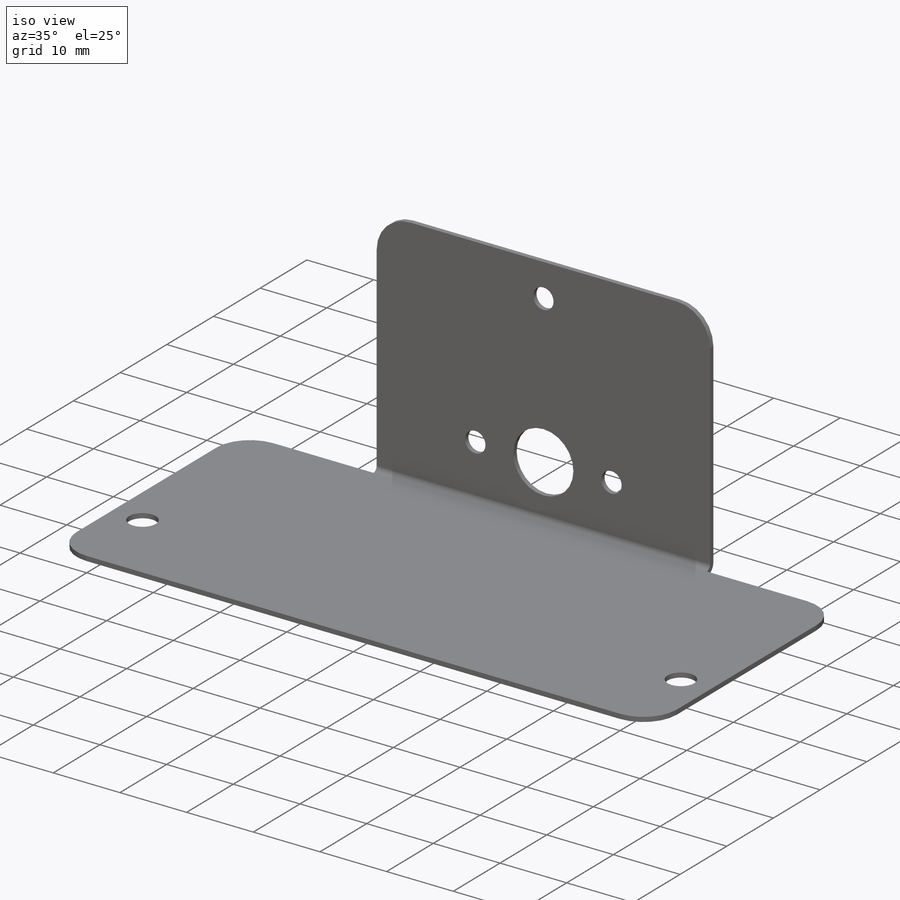
[diagram: iso view]
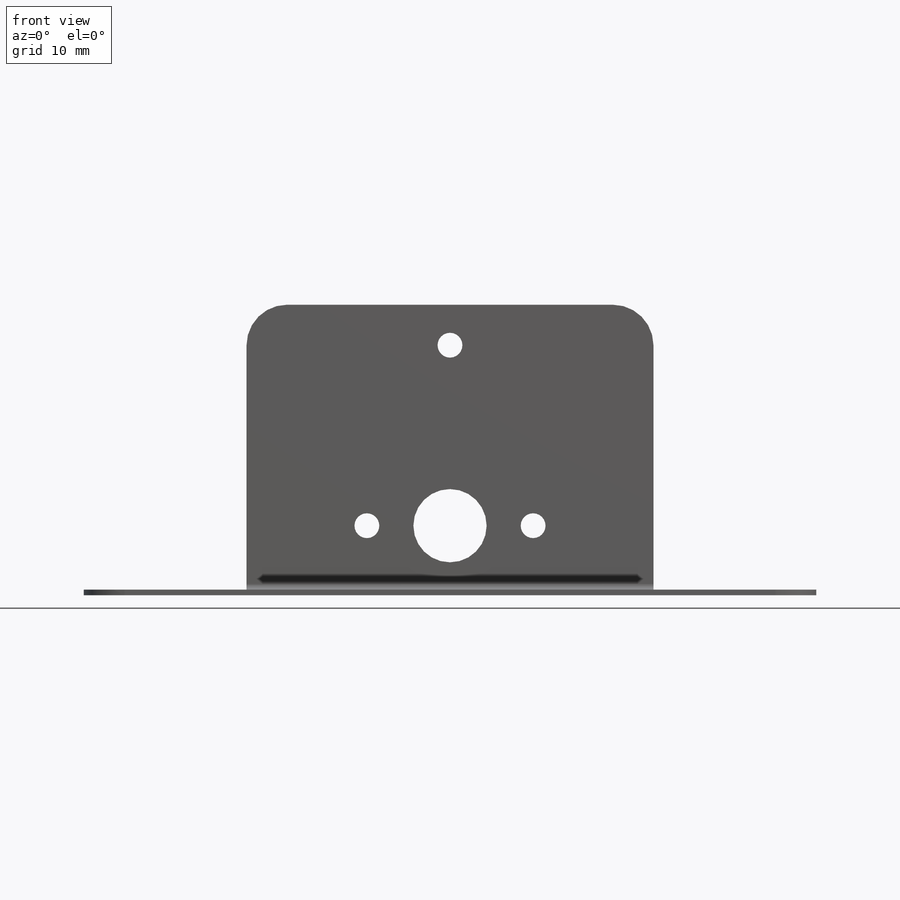
[diagram: front view]
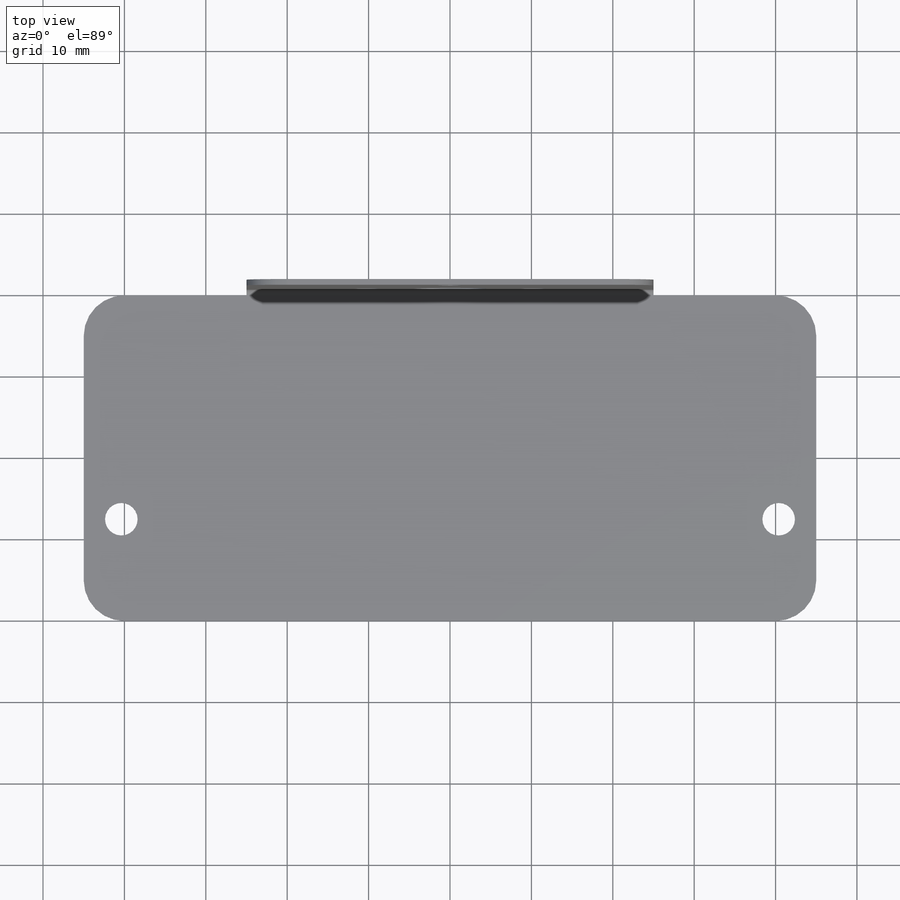
[diagram: top view]
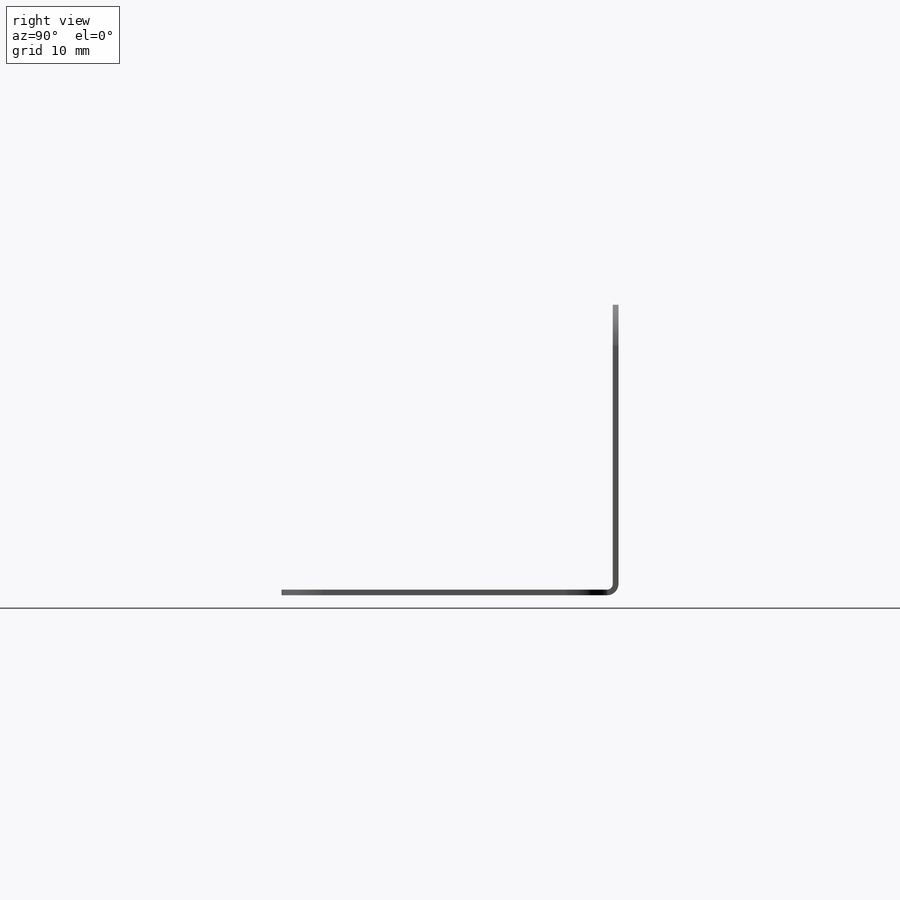
[diagram: right view]
SOLIDWORKS PART (.sldprt)
format: sldprt  version: not decoded by parser v0  size: 1,019,904 bytes
history: native  units: mm
features: sketch x16, sheet_metal_op x11, mirror x10, cut_extrude x5, material x1 + 1 further entry (+11 scaffold rows collapsed; 1 parser-record rows omitted)
feature tree (56):
  scaffold x11  (default folders/planes/origin — collapsed)
  material  "6061 Alloy"
  sketch  "Sketch1"  dims[D1=90.0mm D2=40.0mm]
  sheet_metal_op  "Sheet-Metal1"
  sheet_metal_op  "Base-Flange1"
  sketch  "Sketch6"  dims[c1.D1=35.0mm c1.D2=55.0mm c2.D1=0.7mm c2.D4=90.0deg c2.D5=1.0 c2.D8=0.5mm c2.D9=0.5mm c3.D1=0.7366mm c3.D2=500.0mm c3.D3=0.0mm c3.D6=10.0mm c3.D7=35.0mm]
  sketch  "Sketch7"  dims[D1=3.05mm]
  cut_extrude  "Cut-Extrude1"  [1 undecoded]
  sketch  "Sketch8"  dims[D1=~8.71855mm]
  cut_extrude  "Cut-Extrude2"  [1 undecoded]
  sketch  "Sketch9"  dims[D1=30.0mm]
  cut_extrude  "Cut-Extrude3"  [1 undecoded]
  sketch  "Sketch10"  dims[D5=4.0mm D1=4.622mm D2=7.5mm D3=15.0mm D4=4.0mm D6=4.622mm D7=12.5mm]
  cut_extrude  "Cut-Extrude4"  Depth=0 Edge-Flange2=0
  sketch  "Sketch13"  dims[D1=35.0mm D2=25.0mm]
  sheet_metal_op  "EdgeBend2"  Edge-Flange5=0
  sketch  "Sketch32"  dims[D1=16.0mm D2=4.0mm]
  sketch  "Sketch33"  dims[D1=16.0mm D2=4.0mm]
  sheet_metal_op  "EdgeBend7"
  sheet_metal_op  "EdgeBend8"  Edge-Flange6=0
  sketch  "Sketch38"  dims[c1.D3=2.5mm c1.D1=8.0mm c1.D2=10.0mm c2.D1=10.0mm c2.D2=8.0mm]
  sketch  "Sketch39"  dims[c1.D3=2.5mm c1.D1=10.0mm c1.D2=8.0mm c2.D1=8.0mm c2.D2=10.0mm]
  sheet_metal_op  "EdgeBend9"
  sheet_metal_op  "EdgeBend10"
  sketch  "Sketch40"  dims[D2=3.4mm D1=20.0mm]
  cut_extrude  "Cut-Extrude5"  Depth=2.5mm Edge-Flange7=0
  sketch  "Sketch47"  dims[c1.D1=10.0mm c1.D2=30.0mm c2.D1=10.0mm c2.D3=10.0mm c2.D4=1.5mm]
  sheet_metal_op  "EdgeBend11"  Edge-Flange8=0
  sketch  "Sketch50"  dims[D1=21.0mm]
  sheet_metal_op  "EdgeBend12"
  mirror  "Mirror1"
  sheet_metal_op  "MirrorBend1"
  sheet_metal_op  "MirrorBend2"
  "Flat-Pattern1"
  sketch  "Bend-Lines1"
  sketch  "Bounding-Box1"
  mirror  "Flatten-<EdgeBend2>1"
  mirror  "Flatten-<EdgeBend7>1"
  mirror  "Flatten-<EdgeBend8>1"
  mirror  "Flatten-<EdgeBend9>1"
  mirror  "Flatten-<EdgeBend10>1"
  mirror  "Flatten-<EdgeBend11>1"
  mirror  "Flatten-<EdgeBend12>1"
  mirror  "Flatten-<MirrorBend1>1"
  mirror  "Flatten-<MirrorBend2>1"
  parser-record x1  (decoder bookkeeping rows leaked as tree rows — omitted from the tree; the rows remain in map.json)
decode coverage: 19 of 42 modeling features carry decoded parameters; 1 rows unclassified (native names shown)
note: ~ marks probable driven/reference dimensions
note: 3 parameter values undecoded
summary: no parameter record found for 3 features
note: suppression state not decoded; provenance and decode notes live in map.json
